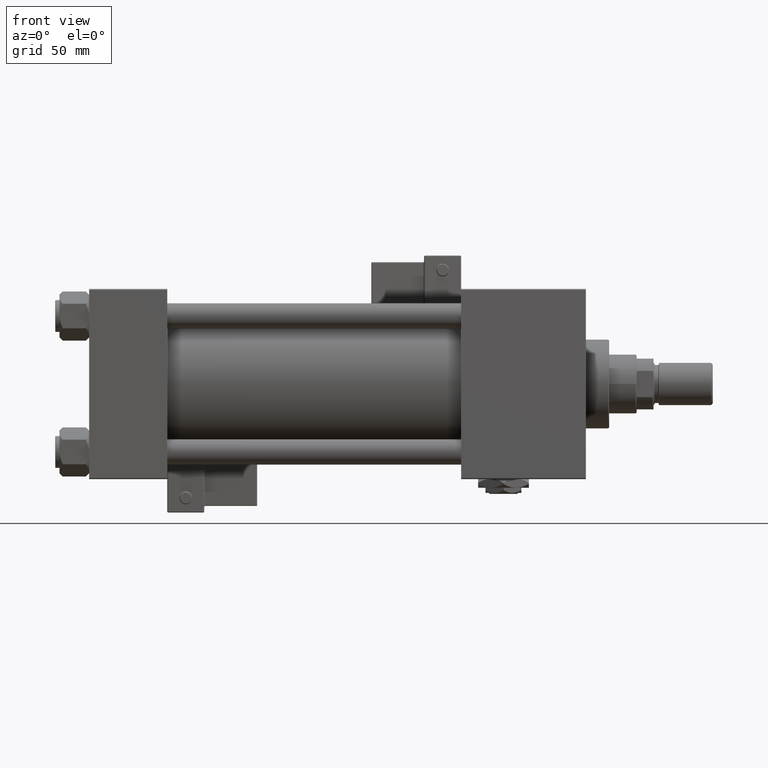
[diagram: clean part render]
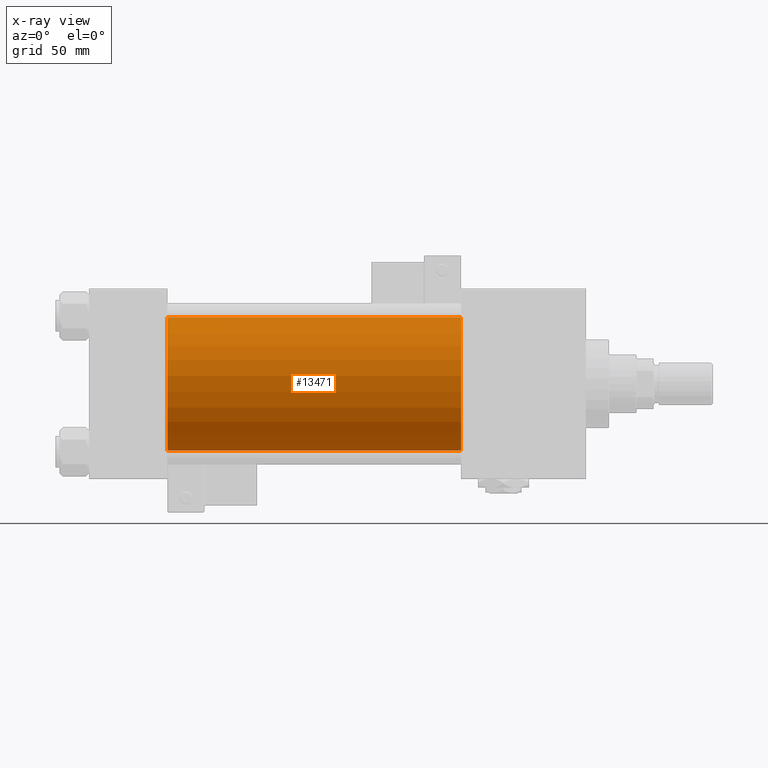
[diagram: x-ray — body ghosted, one internal face saturated and labeled with its STEP entity id]
A machine part, front view, then the same camera in x-ray: the body is ghosted and one INTERNAL B-rep face — a face not visible from any outside direction — is saturated and labeled: STEP entity #13471.
In plain terms, the highlighted cylindrical surface (partial cylindrical patch) has radius 31.5 mm, axis along (-1, -0, -0).
Its self-contained STEP definition (entity closure, byte-faithful):
#1120 = DIRECTION ( 'NONE',  ( -1.000000000000000000, -0.000000000000000000, -0.000000000000000000 ) ) ;
#2623 = DIRECTION ( 'NONE',  ( 1.000000000000000000, 0.000000000000000000, 0.000000000000000000 ) ) ;
#4282 = EDGE_CURVE ( 'NONE', #5273, #18303, #16113, .T. ) ;
#5273 = VERTEX_POINT ( 'NONE', #12247 ) ;
#6016 = AXIS2_PLACEMENT_3D ( 'NONE', #8503, #29777, #16526 ) ;
#7393 = ORIENTED_EDGE ( 'NONE', *, *, #35101, .F. ) ;
#8184 = CARTESIAN_POINT ( 'NONE',  ( 37.00000000000000000, -2.602085213965210642E-15, 0.000000000000000000 ) ) ;
#8503 = CARTESIAN_POINT ( 'NONE',  ( 176.0000000000000284, -2.602085213965210642E-15, 0.000000000000000000 ) ) ;
#11087 = EDGE_CURVE ( 'NONE', #25598, #18303, #35909, .T. ) ;
#12062 = DIRECTION ( 'NONE',  ( 1.000000000000000000, 0.000000000000000000, 0.000000000000000000 ) ) ;
#12133 = VECTOR ( 'NONE', #1120, 1000.000000000000000 ) ;
#12247 = CARTESIAN_POINT ( 'NONE',  ( 176.0000000000000284, 1.255552203348951850E-15, -31.50000000000000000 ) ) ;
#12733 = LINE ( 'NONE', #21294, #12133 ) ;
#13471 = ADVANCED_FACE ( 'NONE', ( #37530 ), #46613, .F. ) ;
#16113 = LINE ( 'NONE', #32969, #26040 ) ;
#16526 = DIRECTION ( 'NONE',  ( 0.000000000000000000, 0.000000000000000000, 1.000000000000000000 ) ) ;
#18303 = VERTEX_POINT ( 'NONE', #21876 ) ;
#21294 = CARTESIAN_POINT ( 'NONE',  ( 176.0000000000000284, -2.602085213965210642E-15, 31.50000000000000000 ) ) ;
#21876 = CARTESIAN_POINT ( 'NONE',  ( 37.00000000000000000, 1.255552203348951850E-15, -31.50000000000000000 ) ) ;
#22122 = EDGE_CURVE ( 'NONE', #28383, #5273, #54085, .T. ) ;
#23218 = CARTESIAN_POINT ( 'NONE',  ( 176.0000000000000284, -2.602085213965210642E-15, 31.50000000000000000 ) ) ;
#24838 = EDGE_LOOP ( 'NONE', ( #51043, #50197, #39196, #7393 ) ) ;
#25598 = VERTEX_POINT ( 'NONE', #54052 ) ;
#26040 = VECTOR ( 'NONE', #33233, 1000.000000000000000 ) ;
#27966 = AXIS2_PLACEMENT_3D ( 'NONE', #8184, #12062, #50166 ) ;
#28383 = VERTEX_POINT ( 'NONE', #23218 ) ;
#29777 = DIRECTION ( 'NONE',  ( -1.000000000000000000, -0.000000000000000000, -0.000000000000000000 ) ) ;
#30293 = AXIS2_PLACEMENT_3D ( 'NONE', #36332, #2623, #44877 ) ;
#32969 = CARTESIAN_POINT ( 'NONE',  ( 176.0000000000000284, 1.255552203348951850E-15, -31.50000000000000000 ) ) ;
#33233 = DIRECTION ( 'NONE',  ( -1.000000000000000000, -0.000000000000000000, -0.000000000000000000 ) ) ;
#35101 = EDGE_CURVE ( 'NONE', #28383, #25598, #12733, .T. ) ;
#35909 = CIRCLE ( 'NONE', #27966, 31.50000000000000000 ) ;
#36332 = CARTESIAN_POINT ( 'NONE',  ( 176.0000000000000284, -2.602085213965210642E-15, 0.000000000000000000 ) ) ;
#37530 = FACE_OUTER_BOUND ( 'NONE', #24838, .T. ) ;
#39196 = ORIENTED_EDGE ( 'NONE', *, *, #11087, .F. ) ;
#44877 = DIRECTION ( 'NONE',  ( 0.000000000000000000, 0.000000000000000000, -1.000000000000000000 ) ) ;
#46613 = CYLINDRICAL_SURFACE ( 'NONE', #6016, 31.50000000000000000 ) ;
#50166 = DIRECTION ( 'NONE',  ( 0.000000000000000000, 0.000000000000000000, -1.000000000000000000 ) ) ;
#50197 = ORIENTED_EDGE ( 'NONE', *, *, #4282, .T. ) ;
#51043 = ORIENTED_EDGE ( 'NONE', *, *, #22122, .T. ) ;
#54052 = CARTESIAN_POINT ( 'NONE',  ( 37.00000000000000000, -2.602085213965210642E-15, 31.50000000000000000 ) ) ;
#54085 = CIRCLE ( 'NONE', #30293, 31.50000000000000000 ) ;